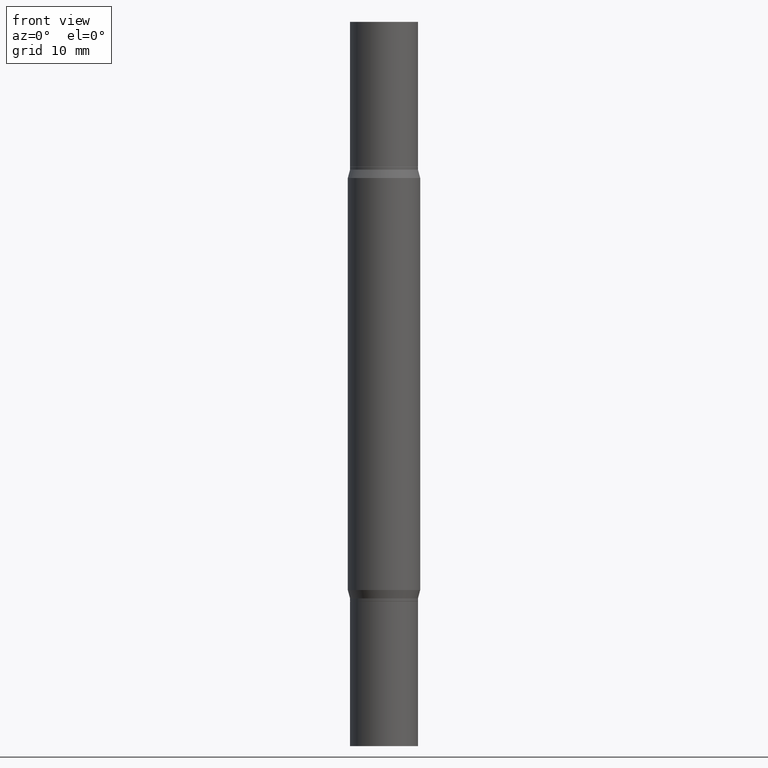
[diagram: clean part render]
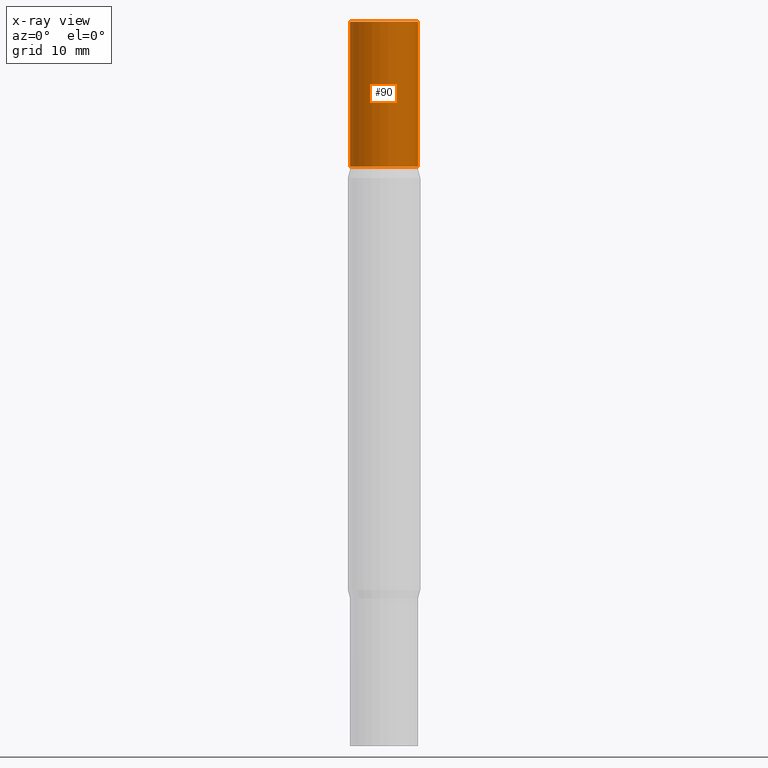
[diagram: x-ray — body ghosted, one internal face saturated and labeled with its STEP entity id]
A machine part, front view, then the same camera in x-ray: the body is ghosted and one INTERNAL B-rep face — a face not visible from any outside direction — is saturated and labeled: STEP entity #90.
In plain terms, the highlighted cylindrical surface (edge-blend (fillet) strip) has radius 2.9769 mm, axis along (-0, -0, -1).
Its self-contained STEP definition (entity closure, byte-faithful):
#15 = DIRECTION ( 'NONE',  ( 1.000000000000000000, -6.982962677686265922E-15, 0.000000000000000000 ) ) ;
#83 = VECTOR ( 'NONE', #441, 39.37007874015748143 ) ;
#88 = DIRECTION ( 'NONE',  ( 1.000000000000000000, -6.982962677686266711E-15, 0.000000000000000000 ) ) ;
#90 = ADVANCED_FACE ( 'NONE', ( #139 ), #284, .T. ) ;
#104 = EDGE_CURVE ( 'NONE', #846, #428, #902, .T. ) ;
#119 = DIRECTION ( 'NONE',  ( -2.445468806185136877E-29, -3.491805094961123683E-15, -1.000000000000000000 ) ) ;
#139 = FACE_OUTER_BOUND ( 'NONE', #383, .T. ) ;
#192 = CIRCLE ( 'NONE', #588, 0.1171999999999999986 ) ;
#193 = VECTOR ( 'NONE', #119, 39.37007874015748143 ) ;
#209 = LINE ( 'NONE', #824, #83 ) ;
#263 = CARTESIAN_POINT ( 'NONE',  ( -0.1171999999999999986, -7.925057676916510614E-15, -2.499999999999999556 ) ) ;
#284 = CYLINDRICAL_SURFACE ( 'NONE', #721, 0.1171999999999999986 ) ;
#290 = CARTESIAN_POINT ( 'NONE',  ( 0.000000000000000000, -8.729108042255335103E-15, -2.499999999999999556 ) ) ;
#301 = EDGE_CURVE ( 'NONE', #390, #703, #192, .T. ) ;
#371 = AXIS2_PLACEMENT_3D ( 'NONE', #683, #838, #88 ) ;
#383 = EDGE_LOOP ( 'NONE', ( #550, #861, #546, #782 ) ) ;
#390 = VERTEX_POINT ( 'NONE', #866 ) ;
#394 = EDGE_CURVE ( 'NONE', #846, #390, #407, .T. ) ;
#407 = LINE ( 'NONE', #263, #193 ) ;
#428 = VERTEX_POINT ( 'NONE', #549 ) ;
#440 = DIRECTION ( 'NONE',  ( -2.445468806185136597E-29, -3.491805094961124077E-15, -1.000000000000000000 ) ) ;
#441 = DIRECTION ( 'NONE',  ( -2.445468806185136877E-29, -3.491805094961123683E-15, -1.000000000000000000 ) ) ;
#529 = CARTESIAN_POINT ( 'NONE',  ( 0.1171999999999999986, -2.563901078157915826E-15, -0.4999999999999993339 ) ) ;
#541 = CARTESIAN_POINT ( 'NONE',  ( 4.890937612370273754E-29, -1.745497852333085568E-15, -0.4999999999999993339 ) ) ;
#546 = ORIENTED_EDGE ( 'NONE', *, *, #301, .T. ) ;
#549 = CARTESIAN_POINT ( 'NONE',  ( 0.1171999999999999986, -8.179985306773559567E-16, 5.463695987328526437E-16 ) ) ;
#550 = ORIENTED_EDGE ( 'NONE', *, *, #104, .F. ) ;
#587 = DIRECTION ( 'NONE',  ( 1.000000000000000000, -6.982962677686269866E-15, 0.000000000000000000 ) ) ;
#588 = AXIS2_PLACEMENT_3D ( 'NONE', #541, #611, #15 ) ;
#611 = DIRECTION ( 'NONE',  ( 2.445468806185136597E-29, 3.491805094961124077E-15, 1.000000000000000000 ) ) ;
#683 = CARTESIAN_POINT ( 'NONE',  ( 6.113672015462842613E-29, 4.046951474745467748E-19, 5.463695987328526437E-16 ) ) ;
#697 = CARTESIAN_POINT ( 'NONE',  ( -0.1171999999999999986, -6.849621325398194571E-17, 5.463695987328557991E-16 ) ) ;
#703 = VERTEX_POINT ( 'NONE', #529 ) ;
#721 = AXIS2_PLACEMENT_3D ( 'NONE', #290, #440, #587 ) ;
#782 = ORIENTED_EDGE ( 'NONE', *, *, #791, .F. ) ;
#791 = EDGE_CURVE ( 'NONE', #428, #703, #209, .T. ) ;
#824 = CARTESIAN_POINT ( 'NONE',  ( 0.1171999999999999986, -9.547511268080165952E-15, -2.499999999999999556 ) ) ;
#838 = DIRECTION ( 'NONE',  ( 2.445468806185136597E-29, 3.491805094961124077E-15, 1.000000000000000000 ) ) ;
#846 = VERTEX_POINT ( 'NONE', #697 ) ;
#861 = ORIENTED_EDGE ( 'NONE', *, *, #394, .T. ) ;
#866 = CARTESIAN_POINT ( 'NONE',  ( -0.1171999999999999986, -6.849621325398205664E-17, -0.4999999999999993339 ) ) ;
#902 = CIRCLE ( 'NONE', #371, 0.1171999999999999986 ) ;